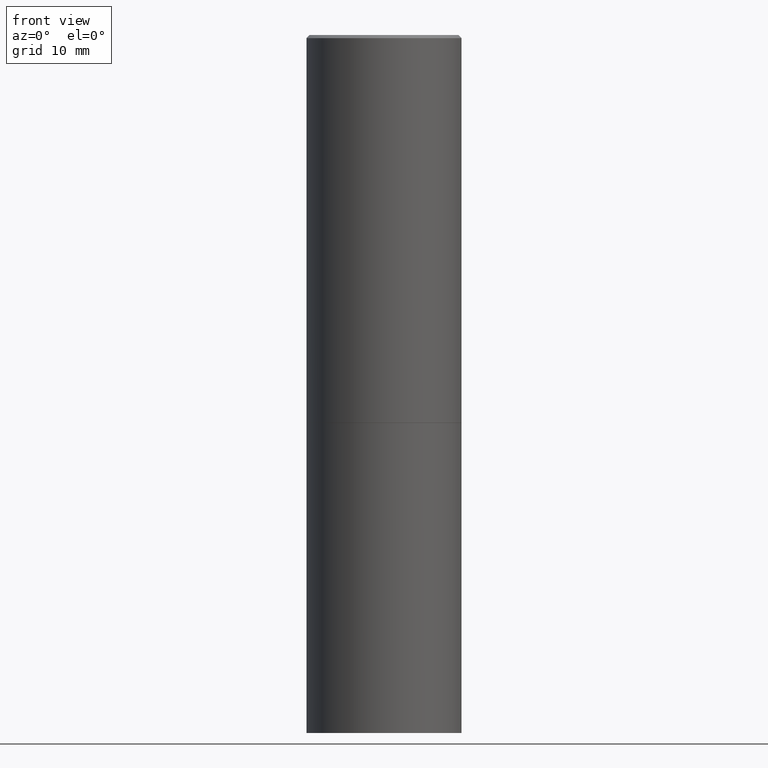
[diagram: clean part render]
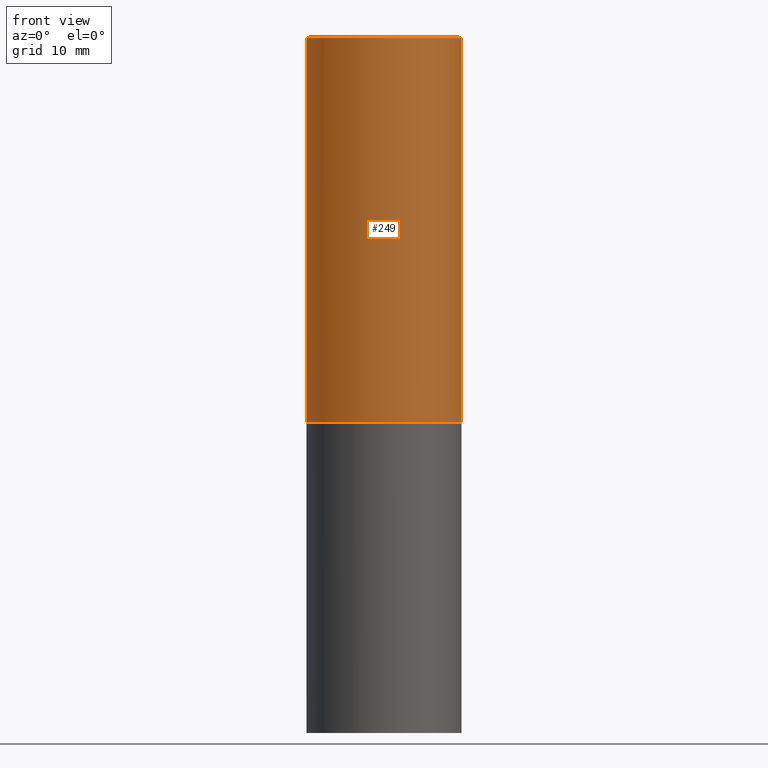
[diagram: same view with one face highlighted and labeled with its STEP entity id]
A machine part, front view. The second image highlights one B-rep face of the part: STEP entity #249.
In plain terms, the highlighted cylindrical surface (partial cylindrical patch) has radius 12.7 mm, axis along (-0, 0, 1).
Its self-contained STEP definition (entity closure, byte-faithful):
#25 = DIRECTION ( 'NONE',  ( -2.445468806185136597E-29, 3.491481338843145583E-15, 1.000000000000000000 ) ) ;
#37 = CARTESIAN_POINT ( 'NONE',  ( 0.5000000000000000000, -1.221669320461215371E-14, -2.499000000000000110 ) ) ;
#39 = DIRECTION ( 'NONE',  ( -2.445468806185136597E-29, 3.491481338843145583E-15, 1.000000000000000000 ) ) ;
#42 = CARTESIAN_POINT ( 'NONE',  ( 4.890937612370302936E-31, -6.982962677686332285E-17, -0.02000000000000011838 ) ) ;
#43 = CARTESIAN_POINT ( 'NONE',  ( -0.5000000000000000000, -8.448070674724411945E-16, -2.499000000000000110 ) ) ;
#45 = AXIS2_PLACEMENT_3D ( 'NONE', #94, #25, #224 ) ;
#84 = DIRECTION ( 'NONE',  ( 1.000000000000000000, -6.982962677686266711E-15, 0.000000000000000000 ) ) ;
#85 = ORIENTED_EDGE ( 'NONE', *, *, #292, .F. ) ;
#92 = EDGE_CURVE ( 'NONE', #318, #198, #142, .T. ) ;
#94 = CARTESIAN_POINT ( 'NONE',  ( 0.000000000000000000, 0.000000000000000000, 0.000000000000000000 ) ) ;
#125 = DIRECTION ( 'NONE',  ( -2.445468806185136877E-29, 3.491481338843145188E-15, 1.000000000000000000 ) ) ;
#128 = LINE ( 'NONE', #326, #272 ) ;
#138 = CARTESIAN_POINT ( 'NONE',  ( 6.111226546656657010E-29, -8.725211865769021935E-15, -2.499000000000000110 ) ) ;
#142 = LINE ( 'NONE', #365, #261 ) ;
#147 = VERTEX_POINT ( 'NONE', #221 ) ;
#152 = EDGE_CURVE ( 'NONE', #215, #147, #128, .T. ) ;
#154 = CARTESIAN_POINT ( 'NONE',  ( -0.4999999999999997224, 3.421651712066268085E-15, -0.02000000000000011838 ) ) ;
#160 = CIRCLE ( 'NONE', #195, 0.4999999999999997224 ) ;
#161 = FACE_OUTER_BOUND ( 'NONE', #174, .T. ) ;
#174 = EDGE_LOOP ( 'NONE', ( #192, #360, #341, #85 ) ) ;
#192 = ORIENTED_EDGE ( 'NONE', *, *, #92, .F. ) ;
#195 = AXIS2_PLACEMENT_3D ( 'NONE', #42, #39, #84 ) ;
#198 = VERTEX_POINT ( 'NONE', #154 ) ;
#208 = EDGE_CURVE ( 'NONE', #318, #215, #287, .T. ) ;
#215 = VERTEX_POINT ( 'NONE', #37 ) ;
#221 = CARTESIAN_POINT ( 'NONE',  ( 0.4999999999999997224, -3.500078625662627502E-15, -0.02000000000000011838 ) ) ;
#224 = DIRECTION ( 'NONE',  ( 1.000000000000000000, -6.982962677686267499E-15, 4.876176775795936353E-29 ) ) ;
#249 = ADVANCED_FACE ( 'NONE', ( #161 ), #258, .T. ) ;
#258 = CYLINDRICAL_SURFACE ( 'NONE', #45, 0.4999999999999998335 ) ;
#261 = VECTOR ( 'NONE', #125, 39.37007874015748143 ) ;
#271 = DIRECTION ( 'NONE',  ( -2.445468806185136597E-29, 3.491481338843145583E-15, 1.000000000000000000 ) ) ;
#272 = VECTOR ( 'NONE', #302, 39.37007874015748143 ) ;
#287 = CIRCLE ( 'NONE', #288, 0.5000000000000000000 ) ;
#288 = AXIS2_PLACEMENT_3D ( 'NONE', #138, #271, #348 ) ;
#292 = EDGE_CURVE ( 'NONE', #198, #147, #160, .T. ) ;
#302 = DIRECTION ( 'NONE',  ( -2.445468806185136877E-29, 3.491481338843145188E-15, 1.000000000000000000 ) ) ;
#318 = VERTEX_POINT ( 'NONE', #43 ) ;
#326 = CARTESIAN_POINT ( 'NONE',  ( 0.4999999999999998335, -3.491481338843132566E-15, 2.438088387897967336E-29 ) ) ;
#341 = ORIENTED_EDGE ( 'NONE', *, *, #152, .T. ) ;
#348 = DIRECTION ( 'NONE',  ( 1.000000000000000000, -6.982962677686265133E-15, 0.000000000000000000 ) ) ;
#360 = ORIENTED_EDGE ( 'NONE', *, *, #208, .T. ) ;
#365 = CARTESIAN_POINT ( 'NONE',  ( -0.4999999999999998335, 3.552713678800499746E-15, -2.459467545127452330E-29 ) ) ;